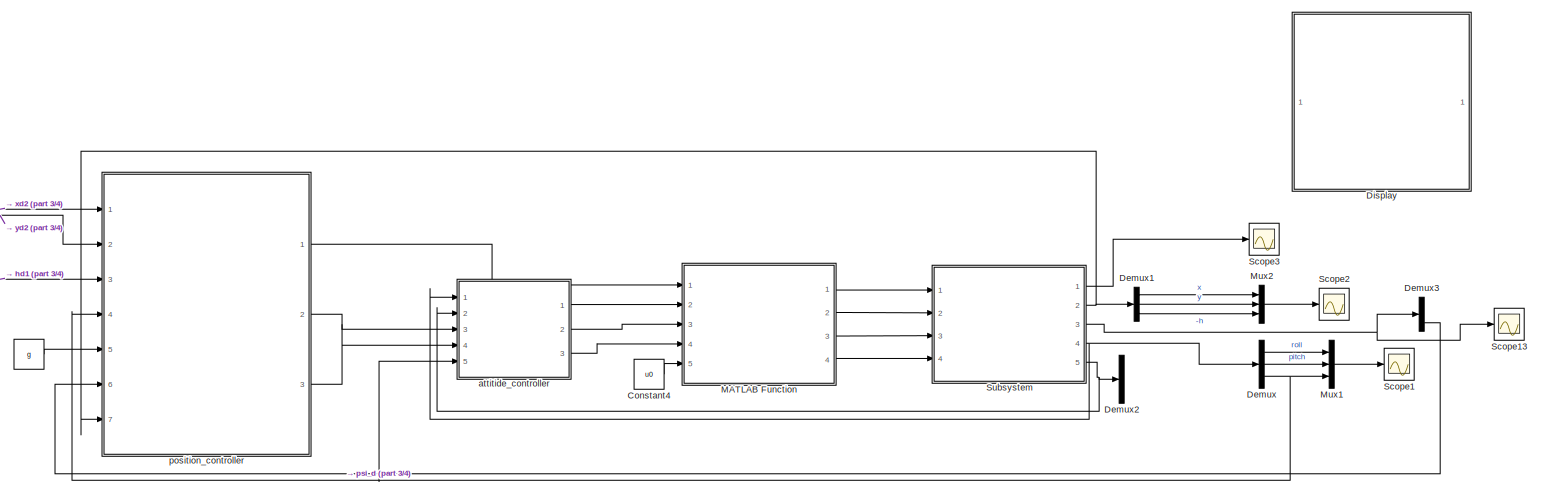
[diagram: root canvas - part 1/4, full width, top band]
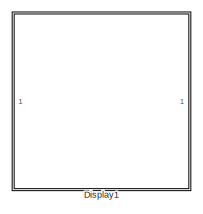
[diagram: root canvas - part 2/4, top right region]
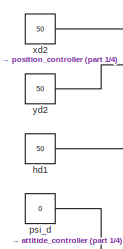
[diagram: root canvas - part 3/4, top left region]
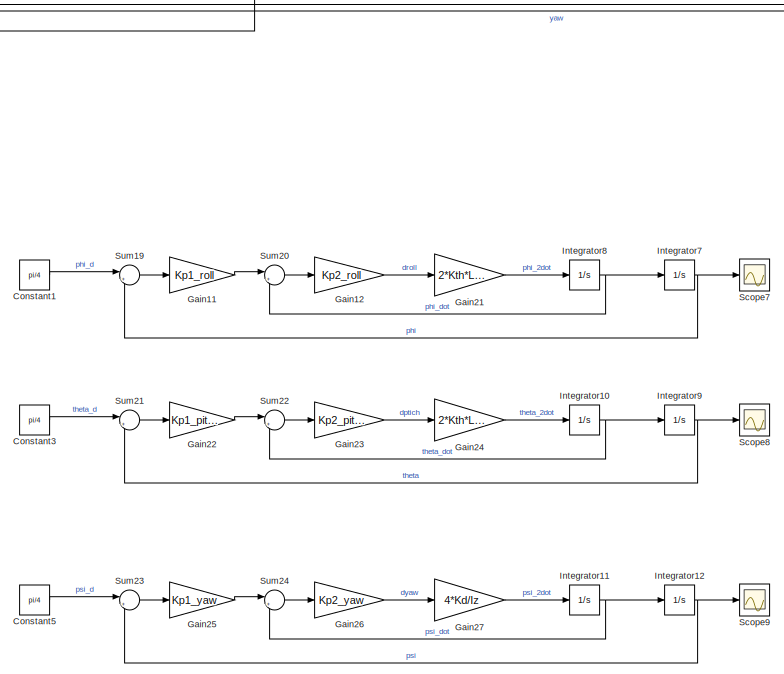
[diagram: root canvas - part 4/4, bottom center region]
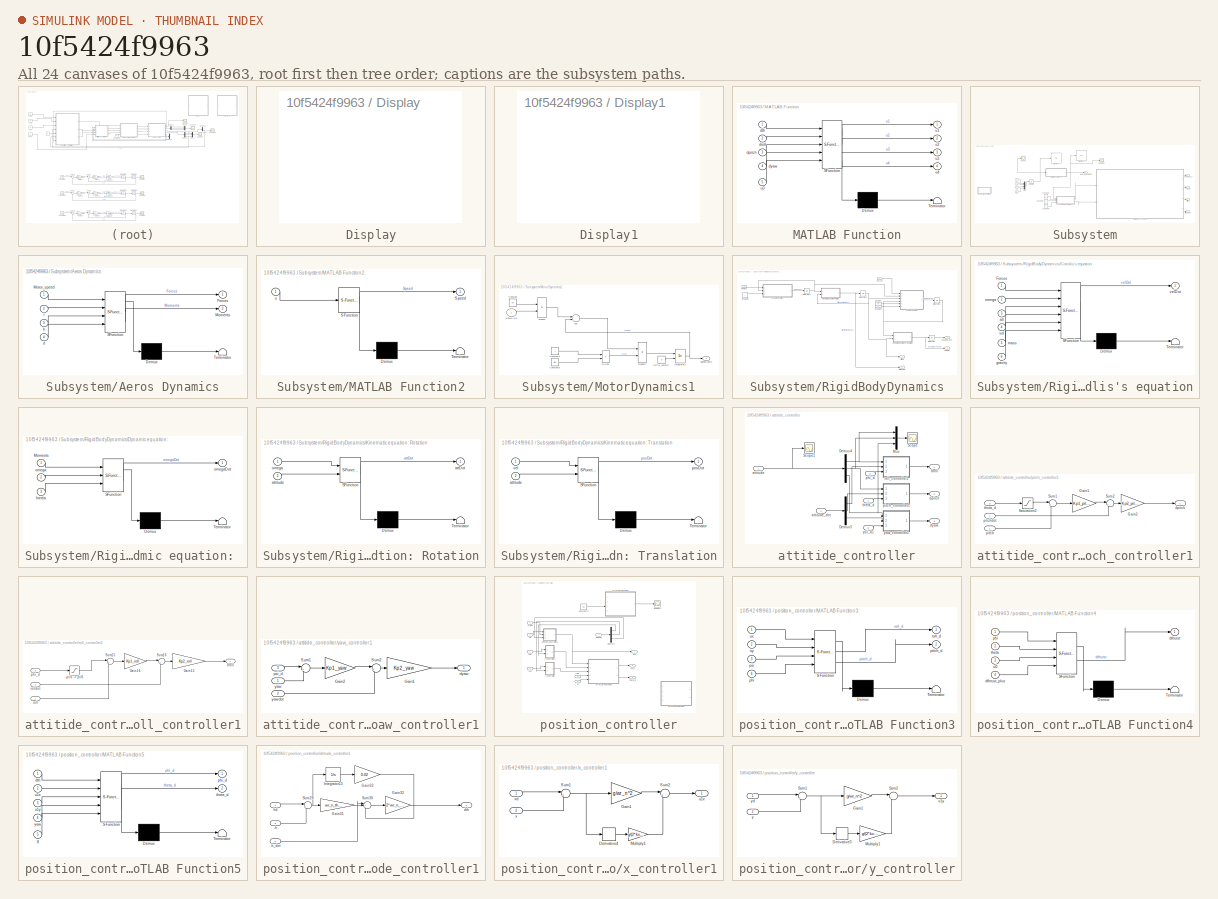
[diagram: thumbnail index - all 24 canvases of the model, root first then tree order]
MODEL slx_10f5424f9963
KIND model
CONFIG AbsTol = auto
CONFIG FixedStep = auto
CONFIG MaxStep = auto
CONFIG MinStep = auto
CONFIG RelTol = 1e-3
CONFIG SampleTimeConstraint = Unconstrained
CONFIG Solver = ode45
CONFIG SolverMode = SingleTasking
CONFIG SolverName = ode45
CONFIG StartTime = 0.0
CONFIG StopTime = 30
BLOCK [Constant]  
  Value = g
BLOCK [Constant] Constant1
  Value = pi/4
BLOCK [Constant] Constant3
  Value = pi/4
BLOCK [Constant] Constant4
  Value = u0
BLOCK [Constant] Constant5
  Value = pi/4
BLOCK [Demux] Demux
  DisplayOption = bar
  Outputs = 3
  Ports = [1, 3]
BLOCK [Demux] Demux1
  DisplayOption = bar
  Outputs = 3
  Ports = [1, 3]
BLOCK [Demux] Demux2
  DisplayOption = bar
  Outputs = 3
  Ports = [1, 3]
BLOCK [Demux] Demux3
  DisplayOption = bar
  Outputs = 3
  Ports = [1, 3]
BLOCK [SubSystem] Display
  Description = Replaced Block
  Ports = []
  RequestExecContextInheritance = off
  Variant = off
BLOCK [SubSystem] Display1
  Description = Replaced Block
  Ports = []
  RequestExecContextInheritance = off
  Variant = off
BLOCK [Gain] Gain11
  Gain = Kp1_roll
  OutDataTypeStr = Inherit: Inherit via internal rule
  ParamDataTypeStr = Inherit: Inherit via internal rule
  SaturateOnIntegerOverflow = off
BLOCK [Gain] Gain12
  Gain = Kp2_roll
  OutDataTypeStr = Inherit: Inherit via internal rule
  ParamDataTypeStr = Inherit: Inherit via internal rule
  SaturateOnIntegerOverflow = off
BLOCK [Gain] Gain21
  Gain = 2*Kth*L/Ix
  OutDataTypeStr = Inherit: Inherit via internal rule
  ParamDataTypeStr = Inherit: Inherit via internal rule
  SaturateOnIntegerOverflow = off
BLOCK [Gain] Gain22
  Gain = Kp1_pitch
  OutDataTypeStr = Inherit: Inherit via internal rule
  ParamDataTypeStr = Inherit: Inherit via internal rule
  SaturateOnIntegerOverflow = off
BLOCK [Gain] Gain23
  Gain = Kp2_pitch
  OutDataTypeStr = Inherit: Inherit via internal rule
  ParamDataTypeStr = Inherit: Inherit via internal rule
  SaturateOnIntegerOverflow = off
BLOCK [Gain] Gain24
  Gain = 2*Kth*L/Iy
  OutDataTypeStr = Inherit: Inherit via internal rule
  ParamDataTypeStr = Inherit: Inherit via internal rule
  SaturateOnIntegerOverflow = off
BLOCK [Gain] Gain25
  Gain = Kp1_yaw
  OutDataTypeStr = Inherit: Inherit via internal rule
  ParamDataTypeStr = Inherit: Inherit via internal rule
  SaturateOnIntegerOverflow = off
BLOCK [Gain] Gain26
  Gain = Kp2_yaw
  OutDataTypeStr = Inherit: Inherit via internal rule
  ParamDataTypeStr = Inherit: Inherit via internal rule
  SaturateOnIntegerOverflow = off
BLOCK [Gain] Gain27
  Gain = 4*Kd/Iz
  OutDataTypeStr = Inherit: Inherit via internal rule
  ParamDataTypeStr = Inherit: Inherit via internal rule
  SaturateOnIntegerOverflow = off
BLOCK [Integrator] Integrator10
  Ports = [1, 1]
BLOCK [Integrator] Integrator11
  Ports = [1, 1]
BLOCK [Integrator] Integrator12
  Ports = [1, 1]
BLOCK [Integrator] Integrator7
  Ports = [1, 1]
BLOCK [Integrator] Integrator8
  Ports = [1, 1]
BLOCK [Integrator] Integrator9
  Ports = [1, 1]
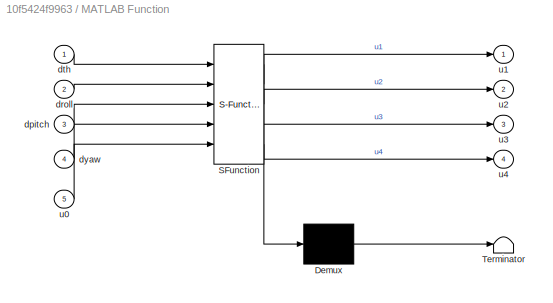
BLOCK [SubSystem] MATLAB Function
  ErrorFcn = Stateflow.Translate.translate
  PermitHierarchicalResolution = ExplicitOnly
  Ports = [5, 4]
  RequestExecContextInheritance = off
  SFBlockType = MATLAB Function
  TreatAsAtomicUnit = on
  Variant = off
BLOCK [Demux] MATLAB Function/ Demux 
  DisplayOption = bar
  Outputs = 1
  Ports = [1, 1]
BLOCK [S-Function] MATLAB Function/ SFunction 
  EnableBusSupport = on
  FunctionName = sf_sfun
  PortCounts = [5 5]
  Ports = [5, 5]
  SFunctionDeploymentMode = off
  Tag = Stateflow S-Function quadcopter_2016a_0211 6
BLOCK [Terminator] MATLAB Function/ Terminator 
BLOCK [Inport] MATLAB Function/dpitch
  IconDisplay = Port number
  Port = 3
BLOCK [Inport] MATLAB Function/droll
  IconDisplay = Port number
  Port = 2
BLOCK [Inport] MATLAB Function/dth
  IconDisplay = Port number
BLOCK [Inport] MATLAB Function/dyaw
  IconDisplay = Port number
  Port = 4
BLOCK [Inport] MATLAB Function/u0
  IconDisplay = Port number
  Port = 5
BLOCK [Outport] MATLAB Function/u1
  IconDisplay = Port number
BLOCK [Outport] MATLAB Function/u2
  IconDisplay = Port number
  Port = 2
BLOCK [Outport] MATLAB Function/u3
  IconDisplay = Port number
  Port = 3
BLOCK [Outport] MATLAB Function/u4
  IconDisplay = Port number
  Port = 4
BLOCK [Mux] Mux1
  DisplayOption = bar
  Inputs = 3
  Ports = [3, 1]
BLOCK [Mux] Mux2
  DisplayOption = bar
  Inputs = 3
  Ports = [3, 1]
BLOCK [Scope] Scope1
  Ports = [1]
  ScopeSpecificationString = Simulink.scopes.TimeScopeBlockCfg('CurrentConfiguration', extmgr.ConfigurationSet(extmgr.Configuration('Core','General UI',true),extmgr.Configuration('Core','Source UI',true),extmgr.Configuration('Sources','WiredSimulink',true,'DataLoggingVariableName','ScopeData1'),extmgr.Configuration('Visuals','Time Domain',true,'SerializedDisplays',{struct('MinYLimReal','-0.57841','MaxYLimReal','0.86516','YLab...<+1516ch>
BLOCK [Scope] Scope13
  Ports = [1]
  ScopeSpecificationString = Simulink.scopes.TimeScopeBlockCfg('CurrentConfiguration', extmgr.ConfigurationSet(extmgr.Configuration('Core','General UI',true),extmgr.Configuration('Core','Source UI',true),extmgr.Configuration('Sources','WiredSimulink',true,'DataLoggingVariableName','ScopeData2'),extmgr.Configuration('Visuals','Time Domain',true,'SerializedDisplays',{struct('MinYLimReal','-18.26595','MaxYLimReal','164.39356','Y...<+1661ch>
BLOCK [Scope] Scope2
  Ports = [1]
  ScopeSpecificationString = Simulink.scopes.TimeScopeBlockCfg('CurrentConfiguration', extmgr.ConfigurationSet(extmgr.Configuration('Core','General UI',true),extmgr.Configuration('Core','Source UI',true),extmgr.Configuration('Sources','WiredSimulink',true,'DataLogging',true,'DataLoggingVariableName','PosEnd','DataLoggingSaveFormat','Structure'),extmgr.Configuration('Visuals','Time Domain',true,'SerializedDisplays',{struct('Mi...<+1503ch>
BLOCK [Scope] Scope3
  Ports = [1]
  ScopeSpecificationString = Simulink.scopes.TimeScopeBlockCfg('CurrentConfiguration', extmgr.ConfigurationSet(extmgr.Configuration('Core','General UI',true),extmgr.Configuration('Core','Source UI',true),extmgr.Configuration('Sources','WiredSimulink',true,'DataLogging',true,'DataLoggingVariableName','ScopeData1','DataLoggingSaveFormat','Structure'),extmgr.Configuration('Visuals','Time Domain',true,'SerializedDisplays',{struct...<+1578ch>
BLOCK [Scope] Scope7
  Ports = [1]
  ScopeSpecificationString = Simulink.scopes.TimeScopeBlockCfg('CurrentConfiguration', extmgr.ConfigurationSet(extmgr.Configuration('Core','General UI',true),extmgr.Configuration('Core','Source UI',true),extmgr.Configuration('Sources','WiredSimulink',true,'DataLoggingVariableName','ScopeData1'),extmgr.Configuration('Visuals','Time Domain',true,'SerializedDisplays',{struct('MinYLimReal','-0.10271','MaxYLimReal','0.92443','YLab...<+1501ch>
BLOCK [Scope] Scope8
  Ports = [1]
  ScopeSpecificationString = Simulink.scopes.TimeScopeBlockCfg('CurrentConfiguration', extmgr.ConfigurationSet(extmgr.Configuration('Core','General UI',true),extmgr.Configuration('Core','Source UI',true),extmgr.Configuration('Sources','WiredSimulink',true,'DataLoggingVariableName','ScopeData2'),extmgr.Configuration('Visuals','Time Domain',true,'SerializedDisplays',{struct('MinYLimReal','-0.1027','MaxYLimReal','0.92427','YLabe...<+1501ch>
BLOCK [Scope] Scope9
  Ports = [1]
  ScopeSpecificationString = Simulink.scopes.TimeScopeBlockCfg('CurrentConfiguration', extmgr.ConfigurationSet(extmgr.Configuration('Core','General UI',true),extmgr.Configuration('Core','Source UI',true),extmgr.Configuration('Sources','WiredSimulink',true,'DataLoggingVariableName','ScopeData3'),extmgr.Configuration('Visuals','Time Domain',true,'SerializedDisplays',{struct('MinYLimReal','-0.13868','MaxYLimReal','1.24814','YLab...<+1520ch>
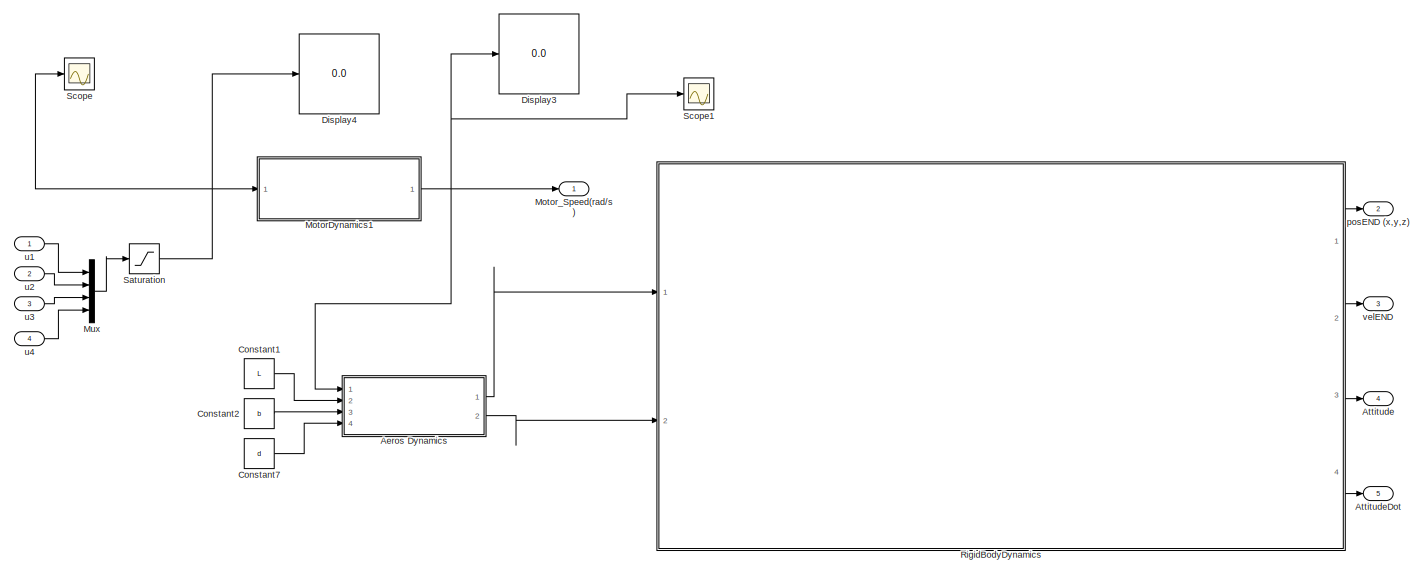
[diagram: Subsystem - part 1/2, most of the canvas]
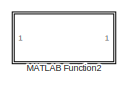
[diagram: Subsystem - part 2/2, middle left region]
BLOCK [SubSystem] Subsystem
  Ports = [4, 5]
  RequestExecContextInheritance = off
  Variant = off
BLOCK [SubSystem] Subsystem/Aeros Dynamics
  ErrorFcn = Stateflow.Translate.translate
  PermitHierarchicalResolution = ExplicitOnly
  Ports = [4, 2]
  RequestExecContextInheritance = off
  SFBlockType = MATLAB Function
  TreatAsAtomicUnit = on
  Variant = off
BLOCK [Demux] Subsystem/Aeros Dynamics/ Demux 
  DisplayOption = bar
  Outputs = 1
  Ports = [1, 1]
BLOCK [S-Function] Subsystem/Aeros Dynamics/ SFunction 
  EnableBusSupport = on
  FunctionName = sf_sfun
  PortCounts = [4 3]
  Ports = [4, 3]
  SFunctionDeploymentMode = off
  Tag = Stateflow S-Function quadcopter_2016a_0211 5
BLOCK [Terminator] Subsystem/Aeros Dynamics/ Terminator 
BLOCK [Outport] Subsystem/Aeros Dynamics/Forces
  IconDisplay = Port number
BLOCK [Outport] Subsystem/Aeros Dynamics/Moments
  IconDisplay = Port number
  Port = 2
BLOCK [Inport] Subsystem/Aeros Dynamics/Motor_speed
  IconDisplay = Port number
BLOCK [Inport] Subsystem/Aeros Dynamics/b
  IconDisplay = Port number
  Port = 3
BLOCK [Inport] Subsystem/Aeros Dynamics/d
  IconDisplay = Port number
  Port = 4
BLOCK [Inport] Subsystem/Aeros Dynamics/l
  IconDisplay = Port number
  Port = 2
BLOCK [Outport] Subsystem/Attitude
  IconDisplay = Port number
  Port = 4
BLOCK [Outport] Subsystem/AttitudeDot
  IconDisplay = Port number
  Port = 5
BLOCK [Constant] Subsystem/Constant1
  Value = L
BLOCK [Constant] Subsystem/Constant2
  Value = b
BLOCK [Constant] Subsystem/Constant7
  Value = d
BLOCK [Display] Subsystem/Display3
  Decimation = 1
  Ports = [1]
BLOCK [Display] Subsystem/Display4
  Decimation = 1
  Ports = [1]
BLOCK [SubSystem] Subsystem/MATLAB Function2
  ErrorFcn = Stateflow.Translate.translate
  PermitHierarchicalResolution = ExplicitOnly
  Ports = [1, 1]
  RequestExecContextInheritance = off
  SFBlockType = MATLAB Function
  TreatAsAtomicUnit = on
  Variant = off
BLOCK [Demux] Subsystem/MATLAB Function2/ Demux 
  DisplayOption = bar
  Outputs = 1
  Ports = [1, 1]
BLOCK [S-Function] Subsystem/MATLAB Function2/ SFunction 
  EnableBusSupport = on
  FunctionName = sf_sfun
  PortCounts = [1 2]
  Ports = [1, 2]
  SFunctionDeploymentMode = off
  Tag = Stateflow S-Function quadcopter_2016a_0211 8
BLOCK [Terminator] Subsystem/MATLAB Function2/ Terminator 
BLOCK [Outport] Subsystem/MATLAB Function2/Speed
  IconDisplay = Port number
BLOCK [Inport] Subsystem/MATLAB Function2/u
  IconDisplay = Port number
BLOCK [SubSystem] Subsystem/MotorDynamics1
  Ports = [1, 1]
  RequestExecContextInheritance = off
  Variant = off
BLOCK [Sum] Subsystem/MotorDynamics1/Add
  InputSameDT = off
  Inputs = +-
  OutDataTypeStr = Inherit: Inherit via internal rule
  Ports = [2, 1]
  SaturateOnIntegerOverflow = off
BLOCK [Constant] Subsystem/MotorDynamics1/Constant
  Value = ks
BLOCK [Constant] Subsystem/MotorDynamics1/Constant8
  Value = tau
BLOCK [Constant] Subsystem/MotorDynamics1/Constant9
BLOCK [Product] Subsystem/MotorDynamics1/Divide
  InputSameDT = off
  Inputs = */
  OutDataTypeStr = Inherit: Inherit via internal rule
  Ports = [2, 1]
  RndMeth = Floor
  SaturateOnIntegerOverflow = off
BLOCK [Integrator] Subsystem/MotorDynamics1/Integrator3
  InitialCondition = omegainit
  InitialConditionSource = external
  Ports = [2, 1]
BLOCK [Product] Subsystem/MotorDynamics1/Product
  InputSameDT = off
  OutDataTypeStr = Inherit: Inherit via internal rule
  Ports = [2, 1]
  RndMeth = Floor
  SaturateOnIntegerOverflow = off
BLOCK [Product] Subsystem/MotorDynamics1/Product1
  InputSameDT = off
  OutDataTypeStr = Inherit: Inherit via internal rule
  Ports = [2, 1]
  RndMeth = Floor
  SaturateOnIntegerOverflow = off
BLOCK [Outport] Subsystem/MotorDynamics1/Speed(rad//s)
  IconDisplay = Port number
BLOCK [Constant] Subsystem/MotorDynamics1/initial_velocity
  Value = 0
BLOCK [Inport] Subsystem/MotorDynamics1/u(PWM 0~1)
  IconDisplay = Port number
BLOCK [Outport] Subsystem/Motor_Speed(rad//s)
  IconDisplay = Port number
BLOCK [Mux] Subsystem/Mux
  DisplayOption = bar
  Ports = [4, 1]
BLOCK [SubSystem] Subsystem/RigidBodyDynamics
  Ports = [2, 4]
  RequestExecContextInheritance = off
  Variant = off
BLOCK [Outport] Subsystem/RigidBodyDynamics/Attitude
  IconDisplay = Port number
  Port = 3
BLOCK [Outport] Subsystem/RigidBodyDynamics/AttitudeDot
  IconDisplay = Port number
  Port = 4
BLOCK [Constant] Subsystem/RigidBodyDynamics/Constant
  Value = m
BLOCK [Constant] Subsystem/RigidBodyDynamics/Constant1
  Value = g
BLOCK [Constant] Subsystem/RigidBodyDynamics/Constant2
  Value = I
BLOCK [SubSystem] Subsystem/RigidBodyDynamics/Coriolis's equation
  ErrorFcn = Stateflow.Translate.translate
  PermitHierarchicalResolution = ExplicitOnly
  Ports = [6, 1]
  RequestExecContextInheritance = off
  SFBlockType = MATLAB Function
  TreatAsAtomicUnit = on
  Variant = off
BLOCK [Demux] Subsystem/RigidBodyDynamics/Coriolis's equation/ Demux 
  DisplayOption = bar
  Outputs = 1
  Ports = [1, 1]
BLOCK [S-Function] Subsystem/RigidBodyDynamics/Coriolis's equation/ SFunction 
  EnableBusSupport = on
  FunctionName = sf_sfun
  PortCounts = [6 2]
  Ports = [6, 2]
  SFunctionDeploymentMode = off
  Tag = Stateflow S-Function quadcopter_2016a_0211 3
BLOCK [Terminator] Subsystem/RigidBodyDynamics/Coriolis's equation/ Terminator 
BLOCK [Inport] Subsystem/RigidBodyDynamics/Coriolis's equation/Forces
  IconDisplay = Port number
BLOCK [Inport] Subsystem/RigidBodyDynamics/Coriolis's equation/att
  IconDisplay = Port number
  Port = 3
BLOCK [Inport] Subsystem/RigidBodyDynamics/Coriolis's equation/gravity
  IconDisplay = Port number
  Port = 6
BLOCK [Inport] Subsystem/RigidBodyDynamics/Coriolis's equation/mass
  IconDisplay = Port number
  Port = 5
BLOCK [Inport] Subsystem/RigidBodyDynamics/Coriolis's equation/omega
  IconDisplay = Port number
  Port = 2
BLOCK [Inport] Subsystem/RigidBodyDynamics/Coriolis's equation/vel
  IconDisplay = Port number
  Port = 4
BLOCK [Outport] Subsystem/RigidBodyDynamics/Coriolis's equation/velDot
  IconDisplay = Port number
BLOCK [SubSystem] Subsystem/RigidBodyDynamics/Dynamic equation: 
  ErrorFcn = Stateflow.Translate.translate
  PermitHierarchicalResolution = ExplicitOnly
  Ports = [3, 1]
  RequestExecContextInheritance = off
  SFBlockType = MATLAB Function
  TreatAsAtomicUnit = on
  Variant = off
BLOCK [Demux] Subsystem/RigidBodyDynamics/Dynamic equation: / Demux 
  DisplayOption = bar
  Outputs = 1
  Ports = [1, 1]
BLOCK [S-Function] Subsystem/RigidBodyDynamics/Dynamic equation: / SFunction 
  EnableBusSupport = on
  FunctionName = sf_sfun
  PortCounts = [3 2]
  Ports = [3, 2]
  SFunctionDeploymentMode = off
  Tag = Stateflow S-Function quadcopter_2016a_0211 4
BLOCK [Terminator] Subsystem/RigidBodyDynamics/Dynamic equation: / Terminator 
BLOCK [Inport] Subsystem/RigidBodyDynamics/Dynamic equation: /Inertia
  IconDisplay = Port number
  Port = 3
BLOCK [Inport] Subsystem/RigidBodyDynamics/Dynamic equation: /Moments
  IconDisplay = Port number
BLOCK [Inport] Subsystem/RigidBodyDynamics/Dynamic equation: /omega
  IconDisplay = Port number
  Port = 2
BLOCK [Outport] Subsystem/RigidBodyDynamics/Dynamic equation: /omegaDot
  IconDisplay = Port number
BLOCK [Inport] Subsystem/RigidBodyDynamics/Forces
  IconDisplay = Port number
BLOCK [Integrator] Subsystem/RigidBodyDynamics/Integrator
  InitialCondition = posinit
  Ports = [1, 1]
BLOCK [Integrator] Subsystem/RigidBodyDynamics/Integrator1
  InitialCondition = velinit
  Ports = [1, 1]
BLOCK [Integrator] Subsystem/RigidBodyDynamics/Integrator2
  InitialCondition = attitudeinit
  Ports = [1, 1]
BLOCK [Integrator] Subsystem/RigidBodyDynamics/Integrator3
  InitialCondition = omegainit
  Ports = [1, 1]
BLOCK [SubSystem] Subsystem/RigidBodyDynamics/Kinematic equation: Rotation
  ErrorFcn = Stateflow.Translate.translate
  PermitHierarchicalResolution = ExplicitOnly
  Ports = [2, 1]
  RequestExecContextInheritance = off
  SFBlockType = MATLAB Function
  TreatAsAtomicUnit = on
  Variant = off
BLOCK [Demux] Subsystem/RigidBodyDynamics/Kinematic equation: Rotation/ Demux 
  DisplayOption = bar
  Outputs = 1
  Ports = [1, 1]
BLOCK [S-Function] Subsystem/RigidBodyDynamics/Kinematic equation: Rotation/ SFunction 
  EnableBusSupport = on
  FunctionName = sf_sfun
  PortCounts = [2 2]
  Ports = [2, 2]
  SFunctionDeploymentMode = off
  Tag = Stateflow S-Function quadcopter_2016a_0211 1
BLOCK [Terminator] Subsystem/RigidBodyDynamics/Kinematic equation: Rotation/ Terminator 
BLOCK [Outport] Subsystem/RigidBodyDynamics/Kinematic equation: Rotation/attDot
  IconDisplay = Port number
BLOCK [Inport] Subsystem/RigidBodyDynamics/Kinematic equation: Rotation/attitude
  IconDisplay = Port number
  Port = 2
BLOCK [Inport] Subsystem/RigidBodyDynamics/Kinematic equation: Rotation/omega
  IconDisplay = Port number
BLOCK [SubSystem] Subsystem/RigidBodyDynamics/Kinematic equation: Translation
  ErrorFcn = Stateflow.Translate.translate
  PermitHierarchicalResolution = ExplicitOnly
  Ports = [2, 1]
  RequestExecContextInheritance = off
  SFBlockType = MATLAB Function
  TreatAsAtomicUnit = on
  Variant = off
BLOCK [Demux] Subsystem/RigidBodyDynamics/Kinematic equation: Translation/ Demux 
  DisplayOption = bar
  Outputs = 1
  Ports = [1, 1]
BLOCK [S-Function] Subsystem/RigidBodyDynamics/Kinematic equation: Translation/ SFunction 
  EnableBusSupport = on
  FunctionName = sf_sfun
  PortCounts = [2 2]
  Ports = [2, 2]
  SFunctionDeploymentMode = off
  Tag = Stateflow S-Function quadcopter_2016a_0211 2
BLOCK [Terminator] Subsystem/RigidBodyDynamics/Kinematic equation: Translation/ Terminator 
BLOCK [Inport] Subsystem/RigidBodyDynamics/Kinematic equation: Translation/attitude
  IconDisplay = Port number
  Port = 2
BLOCK [Outport] Subsystem/RigidBodyDynamics/Kinematic equation: Translation/posDot
  IconDisplay = Port number
BLOCK [Inport] Subsystem/RigidBodyDynamics/Kinematic equation: Translation/vel
  IconDisplay = Port number
BLOCK [Inport] Subsystem/RigidBodyDynamics/Moment
  IconDisplay = Port number
  Port = 2
BLOCK [Outport] Subsystem/RigidBodyDynamics/posEND (x,y,z)
  IconDisplay = Port number
BLOCK [Outport] Subsystem/RigidBodyDynamics/velEND
  IconDisplay = Port number
  Port = 2
BLOCK [Saturate] Subsystem/Saturation
  InputPortMap = u0
  LowerLimit = 0
  Ports = [1, 1]
  UpperLimit = 1
BLOCK [Scope] Subsystem/Scope
  Ports = [1]
  ScopeSpecificationString = Simulink.scopes.TimeScopeBlockCfg('CurrentConfiguration', extmgr.ConfigurationSet(extmgr.Configuration('Core','General UI',true),extmgr.Configuration('Core','Source UI',true),extmgr.Configuration('Sources','WiredSimulink',true,'DataLoggingVariableName','ScopeData1'),extmgr.Configuration('Visuals','Time Domain',true,'SerializedDisplays',{struct('MinYLimReal','0.31838','MaxYLimReal','1.07574','YLabe...<+1485ch>
BLOCK [Scope] Subsystem/Scope1
  Ports = [1]
  ScopeSpecificationString = Simulink.scopes.TimeScopeBlockCfg('CurrentConfiguration', extmgr.ConfigurationSet(extmgr.Configuration('Core','General UI',true),extmgr.Configuration('Core','Source UI',true),extmgr.Configuration('Sources','WiredSimulink',true,'DataLoggingVariableName','ScopeData2'),extmgr.Configuration('Visuals','Time Domain',true,'SerializedDisplays',{struct('MinYLimReal','233.89286','MaxYLimReal','790.27044','Y...<+1542ch>
BLOCK [Outport] Subsystem/posEND (x,y,z)
  IconDisplay = Port number
  Port = 2
BLOCK [Inport] Subsystem/u1
  Description = u1
  IconDisplay = Port number
BLOCK [Inport] Subsystem/u2
  IconDisplay = Port number
  Port = 2
BLOCK [Inport] Subsystem/u3
  IconDisplay = Port number
  Port = 3
BLOCK [Inport] Subsystem/u4
  IconDisplay = Port number
  Port = 4
BLOCK [Outport] Subsystem/velEND
  IconDisplay = Port number
  Port = 3
BLOCK [Sum] Sum19
  IconShape = round
  InputSameDT = off
  Inputs = |+-
  OutDataTypeStr = Inherit: Inherit via internal rule
  Ports = [2, 1]
  SaturateOnIntegerOverflow = off
BLOCK [Sum] Sum20
  IconShape = round
  InputSameDT = off
  Inputs = |+-
  OutDataTypeStr = Inherit: Inherit via internal rule
  Ports = [2, 1]
  SaturateOnIntegerOverflow = off
BLOCK [Sum] Sum21
  IconShape = round
  InputSameDT = off
  Inputs = |+-
  OutDataTypeStr = Inherit: Inherit via internal rule
  Ports = [2, 1]
  SaturateOnIntegerOverflow = off
BLOCK [Sum] Sum22
  IconShape = round
  InputSameDT = off
  Inputs = |+-
  OutDataTypeStr = Inherit: Inherit via internal rule
  Ports = [2, 1]
  SaturateOnIntegerOverflow = off
BLOCK [Sum] Sum23
  IconShape = round
  InputSameDT = off
  Inputs = |+-
  OutDataTypeStr = Inherit: Inherit via internal rule
  Ports = [2, 1]
  SaturateOnIntegerOverflow = off
BLOCK [Sum] Sum24
  IconShape = round
  InputSameDT = off
  Inputs = |+-
  OutDataTypeStr = Inherit: Inherit via internal rule
  Ports = [2, 1]
  SaturateOnIntegerOverflow = off
BLOCK [SubSystem] attitide_controller
  Ports = [5, 3]
  RequestExecContextInheritance = off
  Variant = off
BLOCK [Demux] attitide_controller/Demux4
  DisplayOption = bar
  Outputs = 3
  Ports = [1, 3]
BLOCK [Demux] attitide_controller/Demux5
  DisplayOption = bar
  Outputs = 3
  Ports = [1, 3]
BLOCK [Mux] attitide_controller/Mux
  DisplayOption = bar
  Inputs = 3
  Ports = [3, 1]
BLOCK [Scope] attitide_controller/Scope
  Ports = [1]
  ScopeSpecificationString = Simulink.scopes.TimeScopeBlockCfg('CurrentConfiguration', extmgr.ConfigurationSet(extmgr.Configuration('Core','General UI',true),extmgr.Configuration('Core','Source UI',true),extmgr.Configuration('Sources','WiredSimulink',true,'DataLoggingVariableName','ScopeData1'),extmgr.Configuration('Visuals','Time Domain',true,'SerializedDisplays',{struct('MinYLimReal','-0.57841','MaxYLimReal','0.86516','YLab...<+1445ch>
BLOCK [Scope] attitide_controller/Scope1
  Ports = [1]
  ScopeSpecificationString = Simulink.scopes.TimeScopeBlockCfg('CurrentConfiguration', extmgr.ConfigurationSet(extmgr.Configuration('Core','General UI',true),extmgr.Configuration('Core','Source UI',true),extmgr.Configuration('Sources','WiredSimulink',true,'DataLoggingVariableName','ScopeData2'),extmgr.Configuration('Visuals','Time Domain',true,'SerializedDisplays',{struct('MinYLimReal','-0.57841','MaxYLimReal','0.86516','YLab...<+1449ch>
BLOCK [Inport] attitide_controller/attitude
  IconDisplay = Port number
BLOCK [Inport] attitide_controller/attitude_dot
  IconDisplay = Port number
  Port = 2
BLOCK [Outport] attitide_controller/dpitch
  IconDisplay = Port number
  Port = 2
BLOCK [Outport] attitide_controller/droll
  IconDisplay = Port number
BLOCK [Outport] attitide_controller/dyaw
  IconDisplay = Port number
  Port = 3
BLOCK [Inport] attitide_controller/phi_d
  IconDisplay = Port number
  Port = 3
BLOCK [SubSystem] attitide_controller/pitch_controller1
  Ports = [3, 1]
  RequestExecContextInheritance = off
  Variant = off
BLOCK [Gain] attitide_controller/pitch_controller1/Gain1
  Gain = Kp1_pitch
  OutDataTypeStr = Inherit: Inherit via internal rule
  ParamDataTypeStr = Inherit: Inherit via internal rule
  SaturateOnIntegerOverflow = off
BLOCK [Gain] attitide_controller/pitch_controller1/Gain2
  Gain = Kp2_pitch
  OutDataTypeStr = Inherit: Inherit via internal rule
  ParamDataTypeStr = Inherit: Inherit via internal rule
  SaturateOnIntegerOverflow = off
BLOCK [Saturate] attitide_controller/pitch_controller1/Saturation2
  InputPortMap = u0
  LowerLimit = -pi/8
  Ports = [1, 1]
  UpperLimit = pi/8
BLOCK [Sum] attitide_controller/pitch_controller1/Sum1
  IconShape = round
  InputSameDT = off
  Inputs = |+-
  OutDataTypeStr = Inherit: Inherit via internal rule
  Ports = [2, 1]
  SaturateOnIntegerOverflow = off
BLOCK [Sum] attitide_controller/pitch_controller1/Sum2
  IconShape = round
  InputSameDT = off
  Inputs = |+-
  OutDataTypeStr = Inherit: Inherit via internal rule
  Ports = [2, 1]
  SaturateOnIntegerOverflow = off
BLOCK [Outport] attitide_controller/pitch_controller1/dpitch
  IconDisplay = Port number
BLOCK [Inport] attitide_controller/pitch_controller1/pitch
  IconDisplay = Port number
BLOCK [Inport] attitide_controller/pitch_controller1/pitchdot
  IconDisplay = Port number
  Port = 2
BLOCK [Inport] attitide_controller/pitch_controller1/theta_d
  IconDisplay = Port number
  Port = 3
BLOCK [Inport] attitide_controller/psi_d1
  IconDisplay = Port number
  Port = 5
BLOCK [SubSystem] attitide_controller/roll_controller1
  Ports = [3, 1]
  RequestExecContextInheritance = off
  Variant = off
BLOCK [Saturate] attitide_controller/roll_controller1/-pi//6 -> pi//6
  InputPortMap = u0
  LowerLimit = -pi/8
  Ports = [1, 1]
  UpperLimit = pi/8
BLOCK [Gain] attitide_controller/roll_controller1/Gain15
  Gain = Kp2_roll
  OutDataTypeStr = Inherit: Inherit via internal rule
  ParamDataTypeStr = Inherit: Inherit via internal rule
  SaturateOnIntegerOverflow = off
BLOCK [Gain] attitide_controller/roll_controller1/Gain16
  Gain = Kp1_roll
  OutDataTypeStr = Inherit: Inherit via internal rule
  ParamDataTypeStr = Inherit: Inherit via internal rule
  SaturateOnIntegerOverflow = off
BLOCK [Sum] attitide_controller/roll_controller1/Sum15
  IconShape = round
  InputSameDT = off
  Inputs = |+-
  OutDataTypeStr = Inherit: Inherit via internal rule
  Ports = [2, 1]
  SaturateOnIntegerOverflow = off
BLOCK [Sum] attitide_controller/roll_controller1/Sum16
  IconShape = round
  InputSameDT = off
  Inputs = |+-
  OutDataTypeStr = Inherit: Inherit via internal rule
  Ports = [2, 1]
  SaturateOnIntegerOverflow = off
BLOCK [Outport] attitide_controller/roll_controller1/droll
  IconDisplay = Port number
BLOCK [Inport] attitide_controller/roll_controller1/phi_d
  IconDisplay = Port number
  Port = 3
BLOCK [Inport] attitide_controller/roll_controller1/roll
  IconDisplay = Port number
BLOCK [Inport] attitide_controller/roll_controller1/rolldot
  IconDisplay = Port number
  Port = 2
BLOCK [Inport] attitide_controller/theta_d
  IconDisplay = Port number
  Port = 4
BLOCK [SubSystem] attitide_controller/yaw_controller1
  Ports = [3, 1]
  RequestExecContextInheritance = off
  Variant = off
BLOCK [Gain] attitide_controller/yaw_controller1/Gain1
  Gain = Kp2_yaw
  OutDataTypeStr = Inherit: Inherit via internal rule
  ParamDataTypeStr = Inherit: Inherit via internal rule
  SaturateOnIntegerOverflow = off
BLOCK [Gain] attitide_controller/yaw_controller1/Gain2
  Gain = Kp1_yaw
  OutDataTypeStr = Inherit: Inherit via internal rule
  ParamDataTypeStr = Inherit: Inherit via internal rule
  SaturateOnIntegerOverflow = off
BLOCK [Sum] attitide_controller/yaw_controller1/Sum1
  IconShape = round
  InputSameDT = off
  Inputs = |+-
  OutDataTypeStr = Inherit: Inherit via internal rule
  Ports = [2, 1]
  SaturateOnIntegerOverflow = off
BLOCK [Sum] attitide_controller/yaw_controller1/Sum2
  IconShape = round
  InputSameDT = off
  Inputs = |+-
  OutDataTypeStr = Inherit: Inherit via internal rule
  Ports = [2, 1]
  SaturateOnIntegerOverflow = off
BLOCK [Outport] attitide_controller/yaw_controller1/dyaw
  IconDisplay = Port number
BLOCK [Inport] attitide_controller/yaw_controller1/psi_d
  IconDisplay = Port number
  Port = 3
BLOCK [Inport] attitide_controller/yaw_controller1/yaw
  IconDisplay = Port number
BLOCK [Inport] attitide_controller/yaw_controller1/yawdot
  IconDisplay = Port number
  Port = 2
BLOCK [Constant] hd1
  Value = 50
BLOCK [SubSystem] position_controller
  Ports = [7, 3]
  RequestExecContextInheritance = off
  Variant = off
BLOCK [Inport] position_controller/-h_dot
  IconDisplay = Port number
  Port = 6
BLOCK [Constant] position_controller/Constant17
  Value = u0
BLOCK [Demux] position_controller/Demux4
  DisplayOption = bar
  Outputs = 3
  Ports = [1, 3]
BLOCK [SubSystem] position_controller/MATLAB Function3
  ErrorFcn = Stateflow.Translate.translate
  PermitHierarchicalResolution = ExplicitOnly
  Ports = [4, 2]
  RequestExecContextInheritance = off
  SFBlockType = MATLAB Function
  TreatAsAtomicUnit = on
  Variant = off
BLOCK [Demux] position_controller/MATLAB Function3/ Demux 
  DisplayOption = bar
  Outputs = 1
  Ports = [1, 1]
BLOCK [S-Function] position_controller/MATLAB Function3/ SFunction 
  EnableBusSupport = on
  FunctionName = sf_sfun
  PortCounts = [4 3]
  Ports = [4, 3]
  SFunctionDeploymentMode = off
  Tag = Stateflow S-Function quadcopter_2016a_0211 9
BLOCK [Terminator] position_controller/MATLAB Function3/ Terminator 
BLOCK [Inport] position_controller/MATLAB Function3/phi
  IconDisplay = Port number
  Port = 4
BLOCK [Outport] position_controller/MATLAB Function3/pitch_d
  IconDisplay = Port number
  Port = 2
BLOCK [Inport] position_controller/MATLAB Function3/psi
  IconDisplay = Port number
  Port = 3
BLOCK [Outport] position_controller/MATLAB Function3/roll_d
  IconDisplay = Port number
BLOCK [Inport] position_controller/MATLAB Function3/ux
  IconDisplay = Port number
BLOCK [Inport] position_controller/MATLAB Function3/uy
  IconDisplay = Port number
  Port = 2
BLOCK [SubSystem] position_controller/MATLAB Function4
  ErrorFcn = Stateflow.Translate.translate
  PermitHierarchicalResolution = ExplicitOnly
  Ports = [4, 1]
  RequestExecContextInheritance = off
  SFBlockType = MATLAB Function
  TreatAsAtomicUnit = on
  Variant = off
BLOCK [Demux] position_controller/MATLAB Function4/ Demux 
  DisplayOption = bar
  Outputs = 1
  Ports = [1, 1]
BLOCK [S-Function] position_controller/MATLAB Function4/ SFunction 
  EnableBusSupport = on
  FunctionName = sf_sfun
  PortCounts = [4 2]
  Ports = [4, 2]
  SFunctionDeploymentMode = off
  Tag = Stateflow S-Function quadcopter_2016a_0211 11
BLOCK [Terminator] position_controller/MATLAB Function4/ Terminator 
BLOCK [Inport] position_controller/MATLAB Function4/dthrust_plus
  IconDisplay = Port number
  Port = 4
BLOCK [Outport] position_controller/MATLAB Function4/dthurst
  IconDisplay = Port number
BLOCK [Inport] position_controller/MATLAB Function4/phi
  IconDisplay = Port number
BLOCK [Inport] position_controller/MATLAB Function4/theta
  IconDisplay = Port number
  Port = 2
BLOCK [Inport] position_controller/MATLAB Function4/u0
  IconDisplay = Port number
  Port = 3
BLOCK [SubSystem] position_controller/MATLAB Function5
  ErrorFcn = Stateflow.Translate.translate
  PermitHierarchicalResolution = ExplicitOnly
  Ports = [5, 2]
  RequestExecContextInheritance = off
  SFBlockType = MATLAB Function
  TreatAsAtomicUnit = on
  Variant = off
BLOCK [Demux] position_controller/MATLAB Function5/ Demux 
  DisplayOption = bar
  Outputs = 1
  Ports = [1, 1]
BLOCK [S-Function] position_controller/MATLAB Function5/ SFunction 
  EnableBusSupport = on
  FunctionName = sf_sfun
  PortCounts = [5 3]
  Ports = [5, 3]
  SFunctionDeploymentMode = off
  Tag = Stateflow S-Function quadcopter_2016a_0211 13
BLOCK [Terminator] position_controller/MATLAB Function5/ Terminator 
BLOCK [Inport] position_controller/MATLAB Function5/dth
  IconDisplay = Port number
BLOCK [Inport] position_controller/MATLAB Function5/g
  IconDisplay = Port number
  Port = 5
BLOCK [Outport] position_controller/MATLAB Function5/phi_d
  IconDisplay = Port number
BLOCK [Outport] position_controller/MATLAB Function5/theta_d
  IconDisplay = Port number
  Port = 2
BLOCK [Inport] position_controller/MATLAB Function5/u1x
  IconDisplay = Port number
  Port = 2
BLOCK [Inport] position_controller/MATLAB Function5/u1y
  IconDisplay = Port number
  Port = 3
BLOCK [Inport] position_controller/MATLAB Function5/yaw
  IconDisplay = Port number
  Port = 4
BLOCK [Scope] position_controller/Scope11
  Ports = [1]
  ScopeSpecificationString = Simulink.scopes.TimeScopeBlockCfg('CurrentConfiguration', extmgr.ConfigurationSet(extmgr.Configuration('Core','General UI',true),extmgr.Configuration('Core','Source UI',true),extmgr.Configuration('Sources','WiredSimulink',true,'DataLoggingVariableName','ScopeData3'),extmgr.Configuration('Visuals','Time Domain',true,'SerializedDisplays',{struct('MinYLimReal','-0.75667','MaxYLimReal','7.18993','YLab...<+1508ch>
BLOCK [SubSystem] position_controller/altitude_controller1
  Ports = [3, 1]
  RequestExecContextInheritance = off
  Variant = off
BLOCK [Inport] position_controller/altitude_controller1/-h
  Description = hd
  IconDisplay = Port number
  Port = 3
BLOCK [Inport] position_controller/altitude_controller1/-h_dot
  Description = hd
  IconDisplay = Port number
  Port = 2
BLOCK [Gain] position_controller/altitude_controller1/Gain31
  Gain = wr_n_th/(2*kxir_th)*0.1
  OutDataTypeStr = Inherit: Inherit via internal rule
  ParamDataTypeStr = Inherit: Inherit via internal rule
  SaturateOnIntegerOverflow = off
BLOCK [Gain] position_controller/altitude_controller1/Gain32
  Gain = 2*wr_n_th*kxir_th*m/(4*Kth)
  OutDataTypeStr = Inherit: Inherit via internal rule
  ParamDataTypeStr = Inherit: Inherit via internal rule
  SaturateOnIntegerOverflow = off
BLOCK [Gain] position_controller/altitude_controller1/Gain33
  Gain = 0.02
  OutDataTypeStr = Inherit: Inherit via internal rule
  ParamDataTypeStr = Inherit: Inherit via internal rule
  SaturateOnIntegerOverflow = off
BLOCK [Integrator] position_controller/altitude_controller1/Integrator13
  Ports = [1, 1]
BLOCK [Sum] position_controller/altitude_controller1/Sum29
  IconShape = round
  InputSameDT = off
  Inputs = |++
  OutDataTypeStr = Inherit: Inherit via internal rule
  Ports = [2, 1]
  SaturateOnIntegerOverflow = off
BLOCK [Sum] position_controller/altitude_controller1/Sum30
  IconShape = round
  InputSameDT = off
  Inputs = |+++
  OutDataTypeStr = Inherit: Inherit via internal rule
  Ports = [3, 1]
  SaturateOnIntegerOverflow = off
BLOCK [Outport] position_controller/altitude_controller1/dth
  IconDisplay = Port number
BLOCK [Inport] position_controller/altitude_controller1/hd
  Description = hd
  IconDisplay = Port number
BLOCK [Outport] position_controller/dth
  IconDisplay = Port number
BLOCK [Inport] position_controller/g
  IconDisplay = Port number
  Port = 5
BLOCK [Inport] position_controller/hd
  IconDisplay = Port number
  Port = 3
BLOCK [Outport] position_controller/phi_d
  IconDisplay = Port number
  Port = 2
BLOCK [Inport] position_controller/position
  IconDisplay = Port number
  Port = 7
BLOCK [Outport] position_controller/theta_d
  IconDisplay = Port number
  Port = 3
BLOCK [SubSystem] position_controller/x_controller1
  Ports = [2, 1]
  RequestExecContextInheritance = off
  Variant = off
BLOCK [Derivative] position_controller/x_controller1/Derivative4
BLOCK [Gain] position_controller/x_controller1/Gain1
  Gain = g/wr_n^2
  OutDataTypeStr = Inherit: Inherit via internal rule
  ParamDataTypeStr = Inherit: Inherit via internal rule
  SaturateOnIntegerOverflow = off
BLOCK [Gain] position_controller/x_controller1/Multiply1
  Gain = g/(2*kxir*wr_n)
  OutDataTypeStr = Inherit: Inherit via internal rule
  ParamDataTypeStr = Inherit: Inherit via internal rule
  SaturateOnIntegerOverflow = off
BLOCK [Sum] position_controller/x_controller1/Sum1
  IconShape = round
  InputSameDT = off
  Inputs = |+-
  OutDataTypeStr = Inherit: Inherit via internal rule
  Ports = [2, 1]
  SaturateOnIntegerOverflow = off
BLOCK [Sum] position_controller/x_controller1/Sum2
  IconShape = round
  InputSameDT = off
  Inputs = |++
  OutDataTypeStr = Inherit: Inherit via internal rule
  Ports = [2, 1]
  SaturateOnIntegerOverflow = off
BLOCK [Outport] position_controller/x_controller1/u1x
  IconDisplay = Port number
BLOCK [Inport] position_controller/x_controller1/x
  IconDisplay = Port number
  Port = 2
BLOCK [Inport] position_controller/x_controller1/xd
  IconDisplay = Port number
BLOCK [Inport] position_controller/xd1
  IconDisplay = Port number
BLOCK [SubSystem] position_controller/y_controller
  Ports = [2, 1]
  RequestExecContextInheritance = off
  Variant = off
BLOCK [Derivative] position_controller/y_controller/Derivative3
BLOCK [Gain] position_controller/y_controller/Gain1
  Gain = g/wr_n^2
  OutDataTypeStr = Inherit: Inherit via internal rule
  ParamDataTypeStr = Inherit: Inherit via internal rule
  SaturateOnIntegerOverflow = off
BLOCK [Gain] position_controller/y_controller/Multiply1
  Gain = g/(2*kxir*wr_n)
  OutDataTypeStr = Inherit: Inherit via internal rule
  ParamDataTypeStr = Inherit: Inherit via internal rule
  SaturateOnIntegerOverflow = off
BLOCK [Sum] position_controller/y_controller/Sum1
  IconShape = round
  InputSameDT = off
  Inputs = |+-
  OutDataTypeStr = Inherit: Inherit via internal rule
  Ports = [2, 1]
  SaturateOnIntegerOverflow = off
BLOCK [Sum] position_controller/y_controller/Sum2
  IconShape = round
  InputSameDT = off
  Inputs = |++
  OutDataTypeStr = Inherit: Inherit via internal rule
  Ports = [2, 1]
  SaturateOnIntegerOverflow = off
BLOCK [Outport] position_controller/y_controller/u1y
  IconDisplay = Port number
BLOCK [Inport] position_controller/y_controller/y
  IconDisplay = Port number
  Port = 2
BLOCK [Inport] position_controller/y_controller/yd
  IconDisplay = Port number
BLOCK [Inport] position_controller/yaw
  IconDisplay = Port number
  Port = 4
BLOCK [Inport] position_controller/yd1
  IconDisplay = Port number
  Port = 2
BLOCK [Constant] psi_d
  Value = 0
BLOCK [Constant] xd2
  Value = 50
BLOCK [Constant] yd2
  Value = 50
LINE  :1 -> position_controller:5
LINE Constant1:1 -> Sum19:1
LINE Constant3:1 -> Sum21:1
LINE Constant4:1 -> MATLAB Function:5
LINE Constant5:1 -> Sum23:1
LINE Demux1:1 -> Mux2:1
LINE Demux1:2 -> Mux2:2
LINE Demux1:3 -> Mux2:3
LINE Demux3:3 -> position_controller:6
LINE Demux:1 -> Mux1:1
LINE Demux:2 -> Mux1:2
NET Demux:3 -> Mux1:3, position_controller:4
LINE Gain11:1 -> Sum20:1
LINE Gain12:1 -> Gain21:1
LINE Gain21:1 -> Integrator8:1
LINE Gain22:1 -> Sum22:1
LINE Gain23:1 -> Gain24:1
LINE Gain24:1 -> Integrator10:1
LINE Gain25:1 -> Sum24:1
LINE Gain26:1 -> Gain27:1
LINE Gain27:1 -> Integrator11:1
NET Integrator10:1 -> Integrator9:1, Sum22:2
NET Integrator11:1 -> Integrator12:1, Sum24:2
NET Integrator12:1 -> Scope9:1, Sum23:2
NET Integrator7:1 -> Scope7:1, Sum19:2
NET Integrator8:1 -> Integrator7:1, Sum20:2
NET Integrator9:1 -> Scope8:1, Sum21:2
LINE MATLAB Function:1 -> Subsystem:1
LINE MATLAB Function:2 -> Subsystem:2
LINE MATLAB Function:3 -> Subsystem:3
LINE MATLAB Function:4 -> Subsystem:4
LINE Mux1:1 -> Scope1:1
LINE Mux2:1 -> Scope2:1
LINE Subsystem/Aeros Dynamics:1 -> Subsystem/RigidBodyDynamics:1
LINE Subsystem/Aeros Dynamics:2 -> Subsystem/RigidBodyDynamics:2
LINE Subsystem/Constant1:1 -> Subsystem/Aeros Dynamics:2
LINE Subsystem/Constant2:1 -> Subsystem/Aeros Dynamics:3
LINE Subsystem/Constant7:1 -> Subsystem/Aeros Dynamics:4
LINE Subsystem/MotorDynamics1/Add:1 -> Subsystem/MotorDynamics1/Product1:1
LINE Subsystem/MotorDynamics1/Constant8:1 -> Subsystem/MotorDynamics1/Divide:2
LINE Subsystem/MotorDynamics1/Constant9:1 -> Subsystem/MotorDynamics1/Divide:1
LINE Subsystem/MotorDynamics1/Constant:1 -> Subsystem/MotorDynamics1/Product:1
LINE Subsystem/MotorDynamics1/Divide:1 -> Subsystem/MotorDynamics1/Product1:2
NET Subsystem/MotorDynamics1/Integrator3:1 -> Subsystem/MotorDynamics1/Add:2, Subsystem/MotorDynamics1/Speed(rad//s):1
LINE Subsystem/MotorDynamics1/Product1:1 -> Subsystem/MotorDynamics1/Integrator3:1
LINE Subsystem/MotorDynamics1/Product:1 -> Subsystem/MotorDynamics1/Add:1
LINE Subsystem/MotorDynamics1/initial_velocity:1 -> Subsystem/MotorDynamics1/Integrator3:2
LINE Subsystem/MotorDynamics1/u(PWM 0~1):1 -> Subsystem/MotorDynamics1/Product:2
NET Subsystem/MotorDynamics1:1 -> Subsystem/Aeros Dynamics:1, Subsystem/Display3:1, Subsystem/Motor_Speed(rad//s):1, Subsystem/Scope1:1
LINE Subsystem/Mux:1 -> Subsystem/Saturation:1
LINE Subsystem/RigidBodyDynamics/Constant1:1 -> Subsystem/RigidBodyDynamics/Coriolis's equation:6
LINE Subsystem/RigidBodyDynamics/Constant2:1 -> Subsystem/RigidBodyDynamics/Dynamic equation: :3
LINE Subsystem/RigidBodyDynamics/Constant:1 -> Subsystem/RigidBodyDynamics/Coriolis's equation:5
LINE Subsystem/RigidBodyDynamics/Coriolis's equation:1 -> Subsystem/RigidBodyDynamics/Integrator1:1
LINE Subsystem/RigidBodyDynamics/Dynamic equation: :1 -> Subsystem/RigidBodyDynamics/Integrator3:1
LINE Subsystem/RigidBodyDynamics/Forces:1 -> Subsystem/RigidBodyDynamics/Coriolis's equation:1
NET Subsystem/RigidBodyDynamics/Integrator1:1 -> Subsystem/RigidBodyDynamics/Coriolis's equation:4, Subsystem/RigidBodyDynamics/Kinematic equation: Translation:1
NET Subsystem/RigidBodyDynamics/Integrator2:1 -> Subsystem/RigidBodyDynamics/Attitude:1, Subsystem/RigidBodyDynamics/Coriolis's equation:3, Subsystem/RigidBodyDynamics/Kinematic equation: Rotation:2, Subsystem/RigidBodyDynamics/Kinematic equation: Translation:2
NET Subsystem/RigidBodyDynamics/Integrator3:1 -> Subsystem/RigidBodyDynamics/Coriolis's equation:2, Subsystem/RigidBodyDynamics/Dynamic equation: :2, Subsystem/RigidBodyDynamics/Kinematic equation: Rotation:1
LINE Subsystem/RigidBodyDynamics/Integrator:1 -> Subsystem/RigidBodyDynamics/posEND (x,y,z):1
NET Subsystem/RigidBodyDynamics/Kinematic equation: Rotation:1 -> Subsystem/RigidBodyDynamics/AttitudeDot:1, Subsystem/RigidBodyDynamics/Integrator2:1
NET Subsystem/RigidBodyDynamics/Kinematic equation: Translation:1 -> Subsystem/RigidBodyDynamics/Integrator:1, Subsystem/RigidBodyDynamics/velEND:1
LINE Subsystem/RigidBodyDynamics/Moment:1 -> Subsystem/RigidBodyDynamics/Dynamic equation: :1
LINE Subsystem/RigidBodyDynamics:1 -> Subsystem/posEND (x,y,z):1
LINE Subsystem/RigidBodyDynamics:2 -> Subsystem/velEND:1
LINE Subsystem/RigidBodyDynamics:3 -> Subsystem/Attitude:1
LINE Subsystem/RigidBodyDynamics:4 -> Subsystem/AttitudeDot:1
NET Subsystem/Saturation:1 -> Subsystem/Display4:1, Subsystem/MotorDynamics1:1, Subsystem/Scope:1
LINE Subsystem/u1:1 -> Subsystem/Mux:1
LINE Subsystem/u2:1 -> Subsystem/Mux:2
LINE Subsystem/u3:1 -> Subsystem/Mux:3
LINE Subsystem/u4:1 -> Subsystem/Mux:4
LINE Subsystem:1 -> Scope3:1
NET Subsystem:2 -> Demux1:1, position_controller:7
NET Subsystem:3 -> Demux3:1, Scope13:1
NET Subsystem:4 -> Demux:1, attitide_controller:1
NET Subsystem:5 -> Demux2:1, attitide_controller:2
LINE Sum19:1 -> Gain11:1
LINE Sum20:1 -> Gain12:1
LINE Sum21:1 -> Gain22:1
LINE Sum22:1 -> Gain23:1
LINE Sum23:1 -> Gain25:1
LINE Sum24:1 -> Gain26:1
NET attitide_controller/Demux4:1 -> attitide_controller/Mux:1, attitide_controller/roll_controller1:1
NET attitide_controller/Demux4:2 -> attitide_controller/Mux:2, attitide_controller/pitch_controller1:1
NET attitide_controller/Demux4:3 -> attitide_controller/Mux:3, attitide_controller/yaw_controller1:1
LINE attitide_controller/Demux5:1 -> attitide_controller/roll_controller1:2
LINE attitide_controller/Demux5:2 -> attitide_controller/pitch_controller1:2
LINE attitide_controller/Demux5:3 -> attitide_controller/yaw_controller1:2
LINE attitide_controller/Mux:1 -> attitide_controller/Scope:1
NET attitide_controller/attitude:1 -> attitide_controller/Demux4:1, attitide_controller/Scope1:1
LINE attitide_controller/attitude_dot:1 -> attitide_controller/Demux5:1
LINE attitide_controller/phi_d:1 -> attitide_controller/roll_controller1:3
LINE attitide_controller/pitch_controller1/Gain1:1 -> attitide_controller/pitch_controller1/Sum2:1
LINE attitide_controller/pitch_controller1/Gain2:1 -> attitide_controller/pitch_controller1/dpitch:1
LINE attitide_controller/pitch_controller1/Saturation2:1 -> attitide_controller/pitch_controller1/Sum1:1
LINE attitide_controller/pitch_controller1/Sum1:1 -> attitide_controller/pitch_controller1/Gain1:1
LINE attitide_controller/pitch_controller1/Sum2:1 -> attitide_controller/pitch_controller1/Gain2:1
LINE attitide_controller/pitch_controller1/pitch:1 -> attitide_controller/pitch_controller1/Sum1:2
LINE attitide_controller/pitch_controller1/pitchdot:1 -> attitide_controller/pitch_controller1/Sum2:2
LINE attitide_controller/pitch_controller1/theta_d:1 -> attitide_controller/pitch_controller1/Saturation2:1
LINE attitide_controller/pitch_controller1:1 -> attitide_controller/dpitch:1
LINE attitide_controller/psi_d1:1 -> attitide_controller/yaw_controller1:3
LINE attitide_controller/roll_controller1/-pi//6 -> pi//6:1 -> attitide_controller/roll_controller1/Sum15:1
LINE attitide_controller/roll_controller1/Gain15:1 -> attitide_controller/roll_controller1/droll:1
LINE attitide_controller/roll_controller1/Gain16:1 -> attitide_controller/roll_controller1/Sum16:1
LINE attitide_controller/roll_controller1/Sum15:1 -> attitide_controller/roll_controller1/Gain16:1
LINE attitide_controller/roll_controller1/Sum16:1 -> attitide_controller/roll_controller1/Gain15:1
LINE attitide_controller/roll_controller1/phi_d:1 -> attitide_controller/roll_controller1/-pi//6 -> pi//6:1
LINE attitide_controller/roll_controller1/roll:1 -> attitide_controller/roll_controller1/Sum15:2
LINE attitide_controller/roll_controller1/rolldot:1 -> attitide_controller/roll_controller1/Sum16:2
LINE attitide_controller/roll_controller1:1 -> attitide_controller/droll:1
LINE attitide_controller/theta_d:1 -> attitide_controller/pitch_controller1:3
LINE attitide_controller/yaw_controller1/Gain1:1 -> attitide_controller/yaw_controller1/dyaw:1
LINE attitide_controller/yaw_controller1/Gain2:1 -> attitide_controller/yaw_controller1/Sum2:1
LINE attitide_controller/yaw_controller1/Sum1:1 -> attitide_controller/yaw_controller1/Gain2:1
LINE attitide_controller/yaw_controller1/Sum2:1 -> attitide_controller/yaw_controller1/Gain1:1
LINE attitide_controller/yaw_controller1/psi_d:1 -> attitide_controller/yaw_controller1/Sum1:1
LINE attitide_controller/yaw_controller1/yaw:1 -> attitide_controller/yaw_controller1/Sum1:2
LINE attitide_controller/yaw_controller1/yawdot:1 -> attitide_controller/yaw_controller1/Sum2:2
LINE attitide_controller/yaw_controller1:1 -> attitide_controller/dyaw:1
LINE attitide_controller:1 -> MATLAB Function:2
LINE attitide_controller:2 -> MATLAB Function:3
LINE attitide_controller:3 -> MATLAB Function:4
LINE hd1:1 -> position_controller:3
LINE position_controller/-h_dot:1 -> position_controller/altitude_controller1:2
LINE position_controller/Constant17:1 -> position_controller/MATLAB Function4:3
LINE position_controller/Demux4:1 -> position_controller/x_controller1:2
LINE position_controller/Demux4:2 -> position_controller/y_controller:2
LINE position_controller/Demux4:3 -> position_controller/altitude_controller1:3
LINE position_controller/MATLAB Function4:1 -> position_controller/Scope11:1
LINE position_controller/MATLAB Function5:1 -> position_controller/phi_d:1
LINE position_controller/MATLAB Function5:2 -> position_controller/theta_d:1
LINE position_controller/altitude_controller1/-h:1 -> position_controller/altitude_controller1/Sum29:2
LINE position_controller/altitude_controller1/-h_dot:1 -> position_controller/altitude_controller1/Sum30:2
LINE position_controller/altitude_controller1/Gain31:1 -> position_controller/altitude_controller1/Sum30:1
LINE position_controller/altitude_controller1/Gain32:1 -> position_controller/altitude_controller1/dth:1
LINE position_controller/altitude_controller1/Gain33:1 -> position_controller/altitude_controller1/Sum30:3
LINE position_controller/altitude_controller1/Integrator13:1 -> position_controller/altitude_controller1/Gain33:1
NET position_controller/altitude_controller1/Sum29:1 -> position_controller/altitude_controller1/Gain31:1, position_controller/altitude_controller1/Integrator13:1
LINE position_controller/altitude_controller1/Sum30:1 -> position_controller/altitude_controller1/Gain32:1
LINE position_controller/altitude_controller1/hd:1 -> position_controller/altitude_controller1/Sum29:1
NET position_controller/altitude_controller1:1 -> position_controller/MATLAB Function5:1, position_controller/dth:1
LINE position_controller/g:1 -> position_controller/MATLAB Function5:5
LINE position_controller/hd:1 -> position_controller/altitude_controller1:1
LINE position_controller/position:1 -> position_controller/Demux4:1
LINE position_controller/x_controller1/Derivative4:1 -> position_controller/x_controller1/Multiply1:1
LINE position_controller/x_controller1/Gain1:1 -> position_controller/x_controller1/Sum2:1
LINE position_controller/x_controller1/Multiply1:1 -> position_controller/x_controller1/Sum2:2
NET position_controller/x_controller1/Sum1:1 -> position_controller/x_controller1/Derivative4:1, position_controller/x_controller1/Gain1:1
LINE position_controller/x_controller1/Sum2:1 -> position_controller/x_controller1/u1x:1
LINE position_controller/x_controller1/x:1 -> position_controller/x_controller1/Sum1:2
LINE position_controller/x_controller1/xd:1 -> position_controller/x_controller1/Sum1:1
LINE position_controller/x_controller1:1 -> position_controller/MATLAB Function5:2
LINE position_controller/xd1:1 -> position_controller/x_controller1:1
LINE position_controller/y_controller/Derivative3:1 -> position_controller/y_controller/Multiply1:1
LINE position_controller/y_controller/Gain1:1 -> position_controller/y_controller/Sum2:1
LINE position_controller/y_controller/Multiply1:1 -> position_controller/y_controller/Sum2:2
NET position_controller/y_controller/Sum1:1 -> position_controller/y_controller/Derivative3:1, position_controller/y_controller/Gain1:1
LINE position_controller/y_controller/Sum2:1 -> position_controller/y_controller/u1y:1
LINE position_controller/y_controller/y:1 -> position_controller/y_controller/Sum1:2
LINE position_controller/y_controller/yd:1 -> position_controller/y_controller/Sum1:1
LINE position_controller/y_controller:1 -> position_controller/MATLAB Function5:3
LINE position_controller/yaw:1 -> position_controller/MATLAB Function5:4
LINE position_controller/yd1:1 -> position_controller/y_controller:1
LINE position_controller:1 -> MATLAB Function:1
LINE position_controller:2 -> attitide_controller:3
LINE position_controller:3 -> attitide_controller:4
LINE psi_d:1 -> attitide_controller:5
LINE xd2:1 -> position_controller:1
LINE yd2:1 -> position_controller:2
note: NET lines group one-source signal fan-out (src -> all destinations, sorted); 1:1 wires keep LINE
CHART Subsystem/RigidBodyDynamics/Kinematic equation: Rotation states=1 transitions=1
  STATE_LABEL 'eML_blk_kernel()'
  STATE_LABEL 'SCRIPT:\nfunction attDot = fcn(omega, attitude)\nphi = attitude(1);\ntheta = attitude(2);\npsi = attitude(3);\n\nR = [1 sin(phi)*tan(theta) cos(phi)*tan(theta); 0 cos(phi) -sin(phi); 0 sin(phi)/cos(theta) cos(phi)/cos(theta)];\n\nattDot = R*omega;\n'
CHART Subsystem/RigidBodyDynamics/Kinematic equation: Translation states=1 transitions=1
  STATE_LABEL 'eML_blk_kernel()'
  STATE_LABEL 'SCRIPT:\nfunction posDot = fcn(vel, attitude)\nphi = attitude(1);\ntheta = attitude(2);\npsi = attitude(3);\n\nR = [cos(psi)*cos(theta) cos(psi)*sin(phi)*sin(theta)-cos(phi)*sin(psi) sin(psi)*sin(phi)+cos(psi)*cos(phi)*sin(theta);\n    sin(psi)*cos(theta) cos(psi)*cos(phi)+sin(psi)*sin(phi)*sin(theta) cos(phi)*sin(psi)*sin(theta)-cos(psi)*sin(phi);\n    -sin(theta) cos(theta)*sin(phi) cos(phi)*cos(theta)]...<+60ch>'
CHART Subsystem/RigidBodyDynamics/Coriolis's equation states=1 transitions=1
  STATE_LABEL 'eML_blk_kernel()'
  STATE_LABEL 'SCRIPT:\nfunction velDot = fcn(Forces, omega, att, vel, mass, gravity)\nphi = att(1);\ntheta = att(2);\npsi = att(3);\n\nG = [-sin(theta); sin(phi)*cos(theta); cos(phi)*cos(theta)]*gravity;\n\nvelDot = G + 1/mass * Forces - cross(omega, vel);\n\n'
CHART Subsystem/RigidBodyDynamics/Dynamic equation:  states=1 transitions=1
  STATE_LABEL 'eML_blk_kernel()'
  STATE_LABEL 'SCRIPT:\nfunction omegaDot = fcn(Moments, omega, Inertia)\nomegaDot = Inertia^(-1)*(Moments-cross(omega, Inertia*omega));'
CHART Subsystem/Aeros Dynamics states=1 transitions=1
  STATE_LABEL 'eML_blk_kernel()'
  STATE_LABEL 'SCRIPT:\nfunction [Forces, Moments] = fcn(Motor_speed, l, b, d)\nomega1 = Motor_speed(1);\nomega2 = Motor_speed(2);\nomega3 = Motor_speed(3);\nomega4 = Motor_speed(4);\nF = b*(omega1^2 + omega2^2 + omega3^2 + omega4^2);\nForces = [0;0;-F];\nTau_x = l*b*(omega4^2-omega2^2);\nTau_y = l*b*(omega1^2-omega3^2);\nTau_z = d*(-omega1^2 + omega2^2 - omega3^2 + omega4^2);\nMoments = [Tau_x; Tau_y; Tau_z];\n'
CHART MATLAB Function states=1 transitions=1
  STATE_LABEL 'eML_blk_kernel()'
  STATE_LABEL 'SCRIPT:\nfunction [u1, u2, u3, u4] = fcn(dth, droll, dpitch, dyaw, u0)\nU = [ 0 1 -1; 1 -1 0 1; 1 0 -1 -1; 1 1 0 1]*[dth+u0; droll; dpitch; dyaw];\nu1 = U(1);\nu2 = U(2);\nu3 = U(3);\nu4 = U(4);1\n\n'
CHART Subsystem/MATLAB Function2 states=1 transitions=1
  STATE_LABEL 'eML_blk_kernel()'
  STATE_LABEL 'SCRIPT:\nfunction Speed = fcn(u)\n    Speed = u.*735/(1+1/2000);\n'
CHART position_controller/MATLAB Function3 states=1 transitions=1
  STATE_LABEL 'eML_blk_kernel()'
  STATE_LABEL 'SCRIPT:\nfunction [roll_d, pitch_d] = fcn(ux,uy,psi, phi)\nux = -ux;\nuy = -uy;\nsin_roll_d = ux*sin(psi) - uy*cos(psi);\nsin_pitch_d = (ux*cos(psi)+uy*sin(psi))/cos(phi);\nsin_roll_d = max(min(sin_roll_d,1),-1);\nsin_pitch_d = max(min(sin_pitch_d,1),-1);\nroll_d = asin(sin_roll_d);\npitch_d = asin(sin_pitch_d);'
CHART position_controller/MATLAB Function4 states=1 transitions=1
  STATE_LABEL 'eML_blk_kernel()'
  STATE_LABEL 'SCRIPT:\nfunction dthurst = fcn(phi, theta, u0,dthrust_plus)\n\ndthurst = (u0+dthrust_plus)/(cos(phi)*cos(theta)) - u0;'
CHART position_controller/MATLAB Function5 states=1 transitions=1
  STATE_LABEL 'eML_blk_kernel()'
  STATE_LABEL 'SCRIPT:\nfunction [phi_d, theta_d] = fcn(dth, u1x, u1y, yaw, g)\nu1z=dth+g;\nu1x=-u1x;\nu1y = -u1y;\nphi_d = atan2(sin(yaw)*cos(yaw)*u1x-cos(yaw)^2*u1y, u1z);\nsin_theta_d = cos(yaw)^2*u1x+sin(yaw)*cos(yaw)*u1y/ u1z;\nsin_theta_d = max(min(sin_theta_d, 1), -1);\ntheta_d = asin(sin_theta_d);\n\n'
